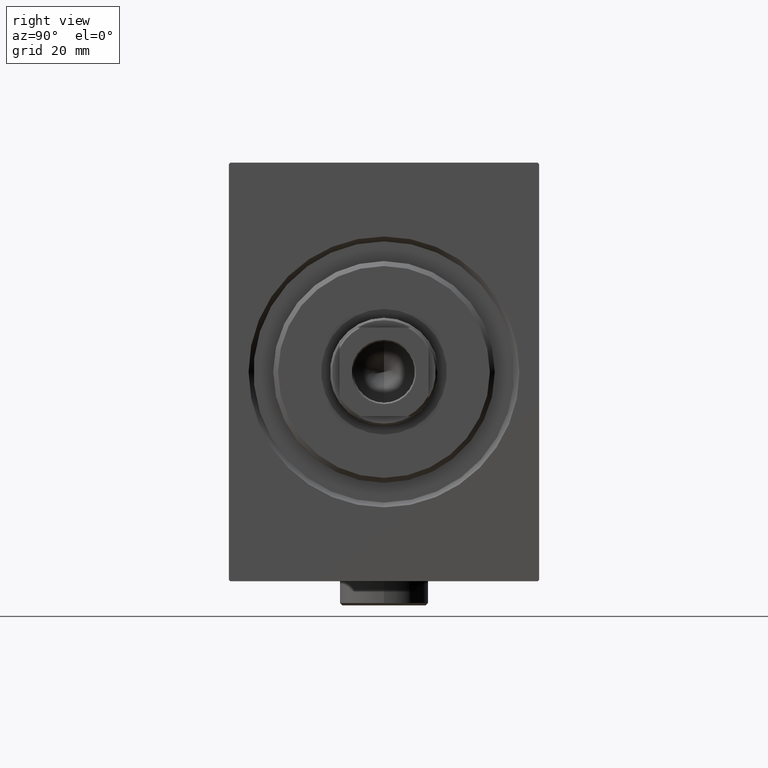
[diagram: clean part render]
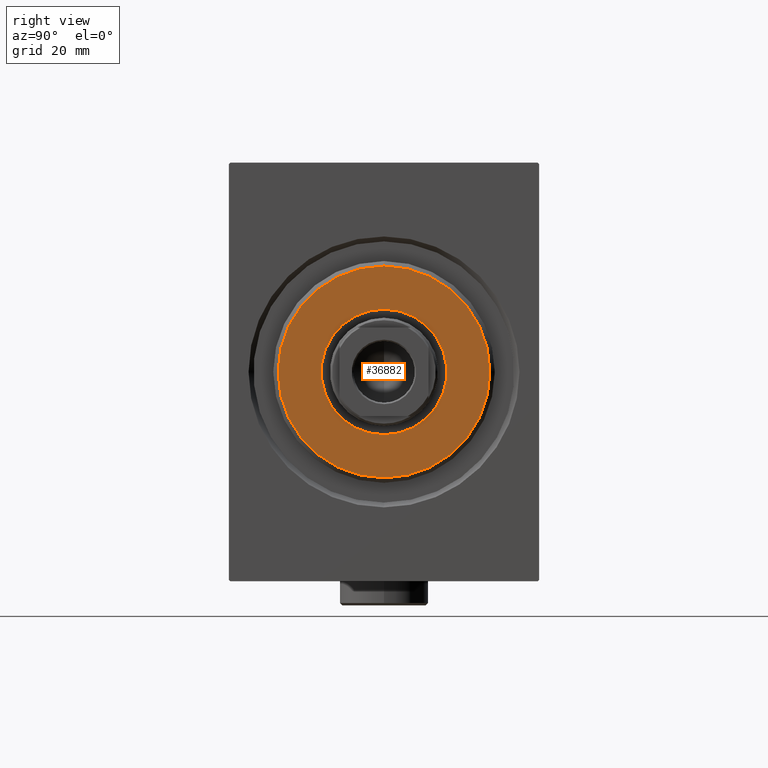
[diagram: same view with one face highlighted and labeled with its STEP entity id]
A machine part, right view. The second image highlights one B-rep face of the part: STEP entity #36882.
In plain terms, the highlighted planar face has unit normal (1, 0, 0).
Its self-contained STEP definition (entity closure, byte-faithful):
#97 = CARTESIAN_POINT ( 'NONE',  ( 3.000000000000000000, 0.000000000000000000, 21.50000000000001066 ) ) ;
#683 = AXIS2_PLACEMENT_3D ( 'NONE', #43764, #20789, #27466 ) ;
#777 = DIRECTION ( 'NONE',  ( 0.000000000000000000, 0.000000000000000000, -1.000000000000000000 ) ) ;
#1224 = PLANE ( 'NONE',  #34048 ) ;
#1438 = FACE_BOUND ( 'NONE', #29310, .T. ) ;
#1488 = CARTESIAN_POINT ( 'NONE',  ( 3.000000000000000000, 0.000000000000000000, 12.75000000000000000 ) ) ;
#1523 = CARTESIAN_POINT ( 'NONE',  ( 3.000000000000000000, 1.561424668912874914E-15, -12.75000000000000000 ) ) ;
#1560 = DIRECTION ( 'NONE',  ( 0.000000000000000000, 0.000000000000000000, -1.000000000000000000 ) ) ;
#4331 = CARTESIAN_POINT ( 'NONE',  ( 3.000000000000000000, 0.000000000000000000, 0.000000000000000000 ) ) ;
#4823 = VERTEX_POINT ( 'NONE', #1523 ) ;
#5108 = EDGE_CURVE ( 'NONE', #10985, #33948, #31202, .T. ) ;
#6146 = ORIENTED_EDGE ( 'NONE', *, *, #32049, .T. ) ;
#8550 = DIRECTION ( 'NONE',  ( 1.000000000000000000, -0.000000000000000000, 0.000000000000000000 ) ) ;
#10985 = VERTEX_POINT ( 'NONE', #97 ) ;
#11476 = DIRECTION ( 'NONE',  ( 1.000000000000000000, -0.000000000000000000, 0.000000000000000000 ) ) ;
#13168 = DIRECTION ( 'NONE',  ( -1.000000000000000000, 0.000000000000000000, -0.000000000000000000 ) ) ;
#13238 = AXIS2_PLACEMENT_3D ( 'NONE', #17140, #13168, #26730 ) ;
#14676 = DIRECTION ( 'NONE',  ( 1.000000000000000000, -0.000000000000000000, 0.000000000000000000 ) ) ;
#17140 = CARTESIAN_POINT ( 'NONE',  ( 3.000000000000000000, 0.000000000000000000, 0.000000000000000000 ) ) ;
#17919 = CARTESIAN_POINT ( 'NONE',  ( 3.000000000000000000, 0.000000000000000000, 0.000000000000000000 ) ) ;
#20789 = DIRECTION ( 'NONE',  ( -1.000000000000000000, 0.000000000000000000, -0.000000000000000000 ) ) ;
#20903 = CARTESIAN_POINT ( 'NONE',  ( 3.000000000000000000, 0.000000000000000000, 0.000000000000000000 ) ) ;
#22533 = ORIENTED_EDGE ( 'NONE', *, *, #28623, .T. ) ;
#23466 = ORIENTED_EDGE ( 'NONE', *, *, #39316, .T. ) ;
#26730 = DIRECTION ( 'NONE',  ( 0.000000000000000000, 0.000000000000000000, -1.000000000000000000 ) ) ;
#27466 = DIRECTION ( 'NONE',  ( 0.000000000000000000, 0.000000000000000000, -1.000000000000000000 ) ) ;
#28227 = AXIS2_PLACEMENT_3D ( 'NONE', #20903, #14676, #1560 ) ;
#28623 = EDGE_CURVE ( 'NONE', #41883, #4823, #28865, .T. ) ;
#28865 = CIRCLE ( 'NONE', #13238, 12.75000000000000000 ) ;
#29061 = ORIENTED_EDGE ( 'NONE', *, *, #5108, .T. ) ;
#29310 = EDGE_LOOP ( 'NONE', ( #22533, #23466 ) ) ;
#31202 = CIRCLE ( 'NONE', #36903, 21.50000000000001066 ) ;
#31520 = DIRECTION ( 'NONE',  ( 0.000000000000000000, 0.000000000000000000, -1.000000000000000000 ) ) ;
#31712 = FACE_OUTER_BOUND ( 'NONE', #43604, .T. ) ;
#32049 = EDGE_CURVE ( 'NONE', #33948, #10985, #36067, .T. ) ;
#33948 = VERTEX_POINT ( 'NONE', #34123 ) ;
#34048 = AXIS2_PLACEMENT_3D ( 'NONE', #4331, #8550, #777 ) ;
#34123 = CARTESIAN_POINT ( 'NONE',  ( 3.000000000000000000, 2.694222958124177993E-15, -21.50000000000001066 ) ) ;
#36067 = CIRCLE ( 'NONE', #28227, 21.50000000000001066 ) ;
#36882 = ADVANCED_FACE ( 'NONE', ( #31712, #1438 ), #1224, .T. ) ;
#36903 = AXIS2_PLACEMENT_3D ( 'NONE', #17919, #11476, #31520 ) ;
#39090 = CIRCLE ( 'NONE', #683, 12.75000000000000000 ) ;
#39316 = EDGE_CURVE ( 'NONE', #4823, #41883, #39090, .T. ) ;
#41883 = VERTEX_POINT ( 'NONE', #1488 ) ;
#43604 = EDGE_LOOP ( 'NONE', ( #29061, #6146 ) ) ;
#43764 = CARTESIAN_POINT ( 'NONE',  ( 3.000000000000000000, 0.000000000000000000, 0.000000000000000000 ) ) ;